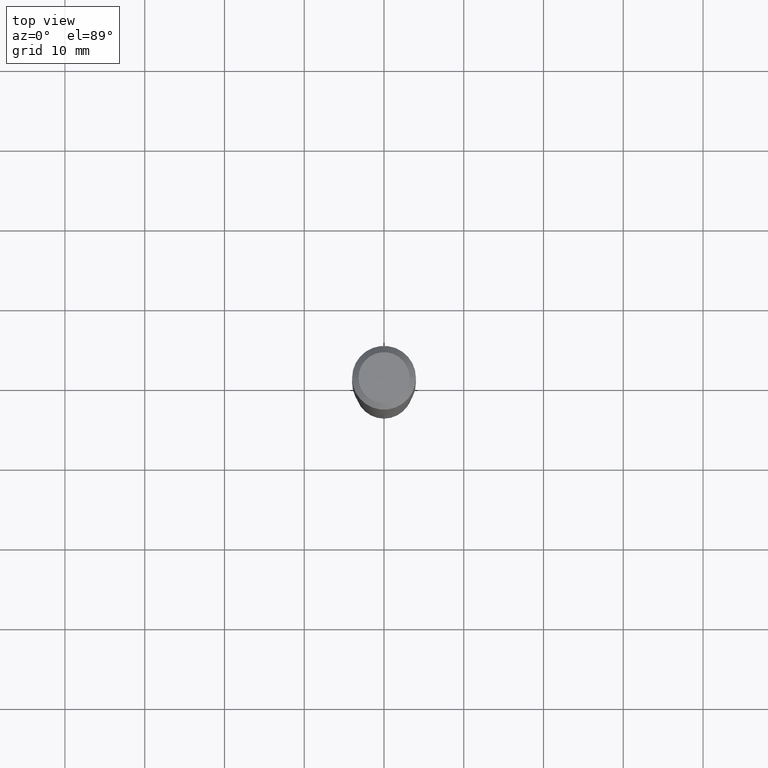
[diagram: clean part render]
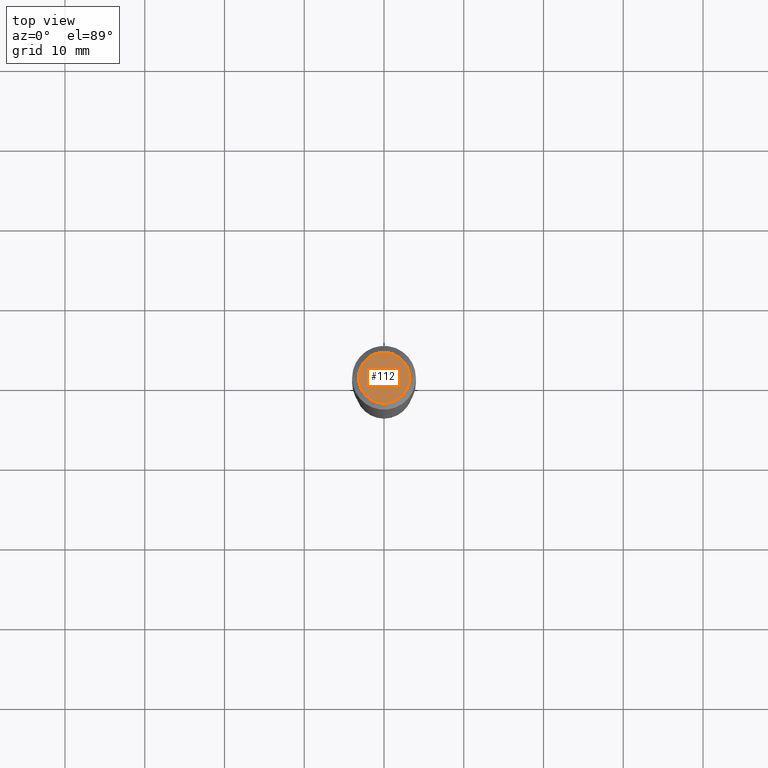
[diagram: same view with one face highlighted and labeled with its STEP entity id]
A machine part, top view. The second image highlights one B-rep face of the part: STEP entity #112.
In plain terms, the highlighted planar face has unit normal (0, -0, -1).
Its self-contained STEP definition (entity closure, byte-faithful):
#25 = PLANE ( 'NONE',  #219 ) ;
#51 = AXIS2_PLACEMENT_3D ( 'NONE', #274, #93, #236 ) ;
#55 = EDGE_CURVE ( 'NONE', #320, #216, #310, .T. ) ;
#93 = DIRECTION ( 'NONE',  ( -2.445468806185136597E-29, 3.491481338843145583E-15, 1.000000000000000000 ) ) ;
#110 = DIRECTION ( 'NONE',  ( -1.000000000000000000, 6.982962677686265922E-15, -4.876176775795935793E-29 ) ) ;
#112 = ADVANCED_FACE ( 'NONE', ( #365 ), #25, .F. ) ;
#115 = CARTESIAN_POINT ( 'NONE',  ( -4.719860820353100843E-47, 6.738710358733633822E-33, 1.930043355456229866E-18 ) ) ;
#129 = AXIS2_PLACEMENT_3D ( 'NONE', #252, #487, #181 ) ;
#181 = DIRECTION ( 'NONE',  ( 1.000000000000000000, -6.982962677686265922E-15, 4.876281427513067258E-29 ) ) ;
#199 = ORIENTED_EDGE ( 'NONE', *, *, #55, .T. ) ;
#202 = CIRCLE ( 'NONE', #51, 0.1260000000000000009 ) ;
#216 = VERTEX_POINT ( 'NONE', #458 ) ;
#219 = AXIS2_PLACEMENT_3D ( 'NONE', #115, #387, #110 ) ;
#236 = DIRECTION ( 'NONE',  ( 1.000000000000000000, -6.982962677686265922E-15, 4.876281427513067258E-29 ) ) ;
#252 = CARTESIAN_POINT ( 'NONE',  ( -9.439721640706201686E-47, 1.347742071746726764E-32, 3.860086710912459732E-18 ) ) ;
#274 = CARTESIAN_POINT ( 'NONE',  ( -9.439721640706201686E-47, 1.347742071746726764E-32, 3.860086710912459732E-18 ) ) ;
#283 = CARTESIAN_POINT ( 'NONE',  ( 0.1260000000000000009, -1.027466422270894443E-15, 3.860086710919128072E-18 ) ) ;
#310 = CIRCLE ( 'NONE', #129, 0.1260000000000000009 ) ;
#320 = VERTEX_POINT ( 'NONE', #283 ) ;
#356 = ORIENTED_EDGE ( 'NONE', *, *, #372, .T. ) ;
#365 = FACE_OUTER_BOUND ( 'NONE', #410, .T. ) ;
#372 = EDGE_CURVE ( 'NONE', #216, #320, #202, .T. ) ;
#387 = DIRECTION ( 'NONE',  ( 2.438088387897960049E-29, -3.491481338843145188E-15, -1.000000000000000000 ) ) ;
#410 = EDGE_LOOP ( 'NONE', ( #356, #199 ) ) ;
#458 = CARTESIAN_POINT ( 'NONE',  ( -0.1260000000000000009, 9.348441284752484904E-16, 3.860086710906114178E-18 ) ) ;
#487 = DIRECTION ( 'NONE',  ( -2.445468806185136597E-29, 3.491481338843145583E-15, 1.000000000000000000 ) ) ;